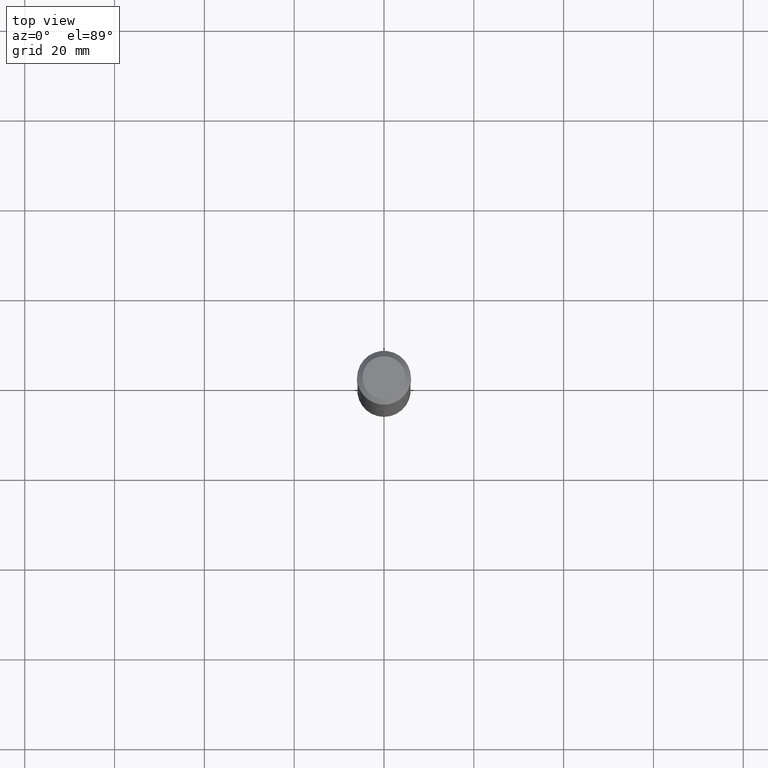
[diagram: clean part render]
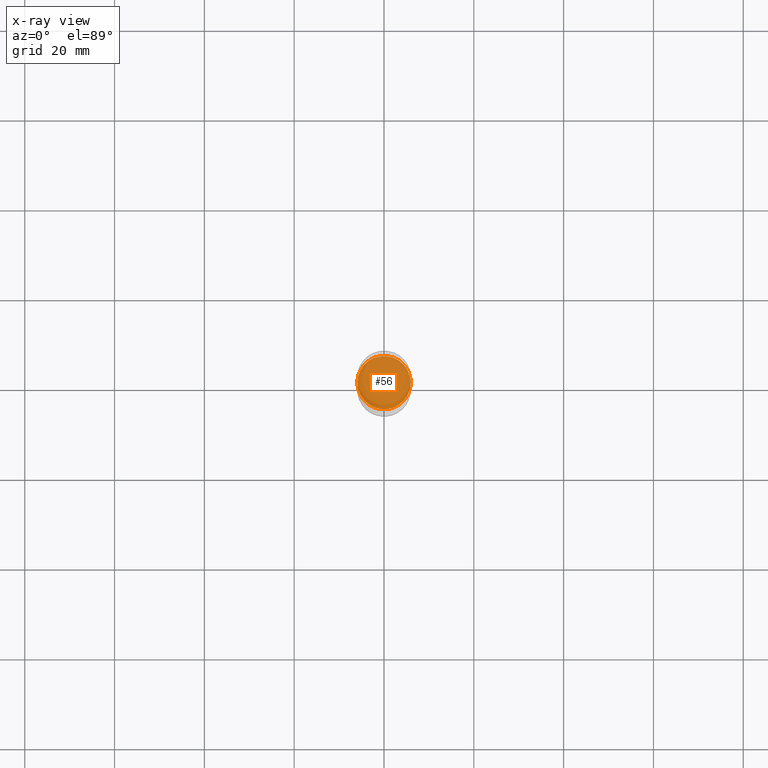
[diagram: x-ray — body ghosted, one internal face saturated and labeled with its STEP entity id]
A machine part, top view, then the same camera in x-ray: the body is ghosted and one INTERNAL B-rep face — a face not visible from any outside direction — is saturated and labeled: STEP entity #56.
In plain terms, the highlighted planar face has unit normal (-0, 0, 1).
Its self-contained STEP definition (entity closure, byte-faithful):
#23 = DIRECTION ( 'NONE',  ( -2.445468806185136597E-29, 3.491481338843145583E-15, 1.000000000000000000 ) ) ;
#28 = EDGE_LOOP ( 'NONE', ( #45, #460 ) ) ;
#36 = DIRECTION ( 'NONE',  ( 1.000000000000000000, -6.982962677686263555E-15, 0.000000000000000000 ) ) ;
#45 = ORIENTED_EDGE ( 'NONE', *, *, #393, .F. ) ;
#56 = ADVANCED_FACE ( 'NONE', ( #135 ), #368, .F. ) ;
#63 = DIRECTION ( 'NONE',  ( 1.000000000000000000, -6.982962677686263555E-15, 0.000000000000000000 ) ) ;
#133 = AXIS2_PLACEMENT_3D ( 'NONE', #232, #376, #36 ) ;
#135 = FACE_OUTER_BOUND ( 'NONE', #28, .T. ) ;
#158 = EDGE_CURVE ( 'NONE', #395, #358, #383, .T. ) ;
#191 = AXIS2_PLACEMENT_3D ( 'NONE', #404, #324, #445 ) ;
#198 = CIRCLE ( 'NONE', #133, 0.2338999999999999968 ) ;
#232 = CARTESIAN_POINT ( 'NONE',  ( 6.354306145991460877E-29, -9.072265110850034200E-15, -2.598400000000000709 ) ) ;
#264 = CARTESIAN_POINT ( 'NONE',  ( 0.2338999999999999968, -1.070558008116085131E-14, -2.598400000000000709 ) ) ;
#324 = DIRECTION ( 'NONE',  ( -2.438088387897960049E-29, 3.491481338843145188E-15, 1.000000000000000000 ) ) ;
#358 = VERTEX_POINT ( 'NONE', #264 ) ;
#368 = PLANE ( 'NONE',  #191 ) ;
#376 = DIRECTION ( 'NONE',  ( -2.445468806185136597E-29, 3.491481338843145583E-15, 1.000000000000000000 ) ) ;
#380 = CARTESIAN_POINT ( 'NONE',  ( -0.2338999999999999968, -7.407656424733047898E-15, -2.598400000000000709 ) ) ;
#383 = CIRCLE ( 'NONE', #407, 0.2338999999999999968 ) ;
#393 = EDGE_CURVE ( 'NONE', #358, #395, #198, .T. ) ;
#395 = VERTEX_POINT ( 'NONE', #380 ) ;
#404 = CARTESIAN_POINT ( 'NONE',  ( 6.354306145991460877E-29, -9.072265110850034200E-15, -2.598400000000000709 ) ) ;
#407 = AXIS2_PLACEMENT_3D ( 'NONE', #478, #23, #63 ) ;
#445 = DIRECTION ( 'NONE',  ( 1.000000000000000000, -6.982962677686265922E-15, 4.876176775795935793E-29 ) ) ;
#460 = ORIENTED_EDGE ( 'NONE', *, *, #158, .F. ) ;
#478 = CARTESIAN_POINT ( 'NONE',  ( 6.354306145991460877E-29, -9.072265110850034200E-15, -2.598400000000000709 ) ) ;